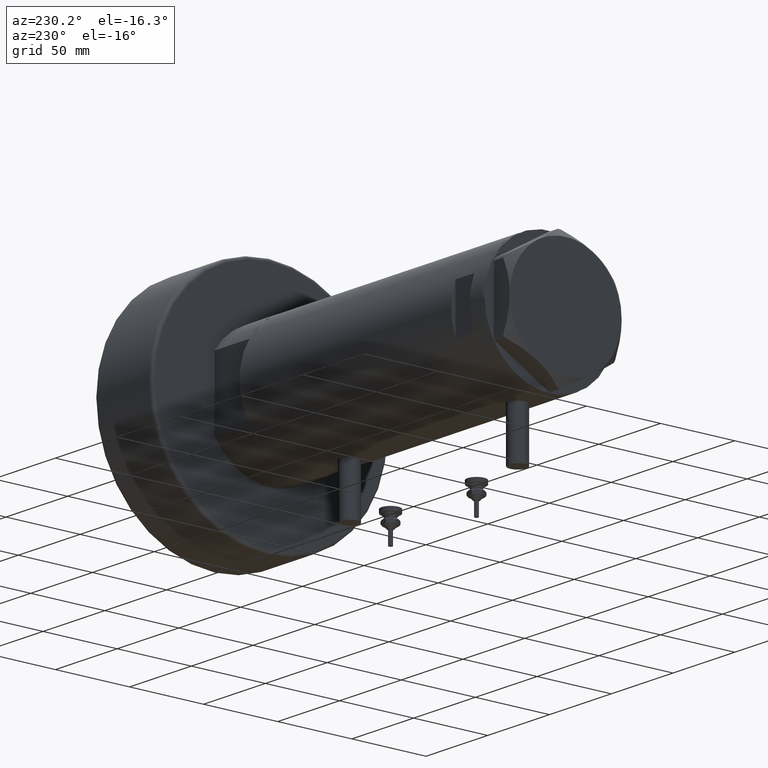
[diagram: clean part render]
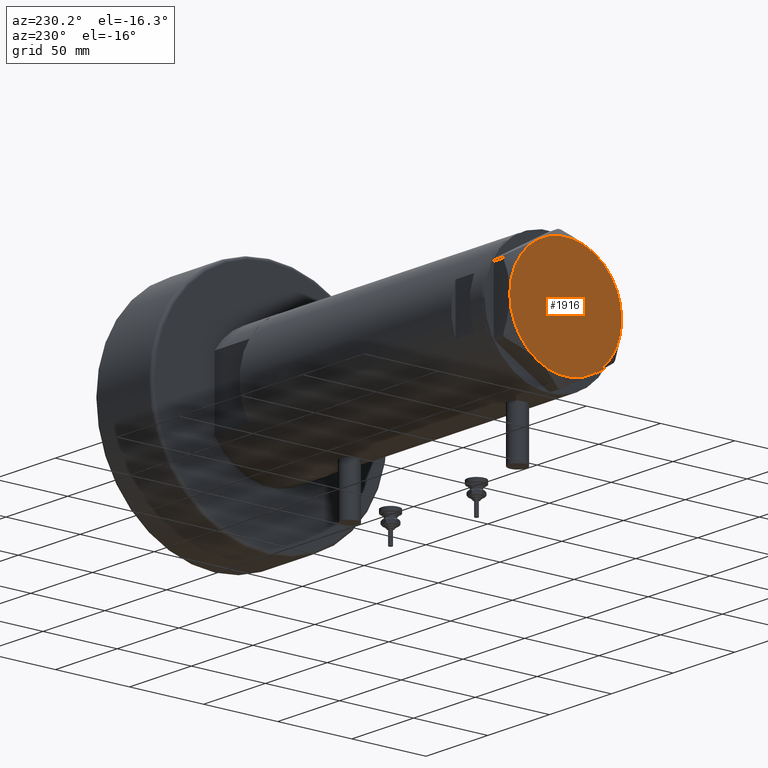
[diagram: same view with one face highlighted and labeled with its STEP entity id]
A machine part, auxiliary view. The second image highlights one B-rep face of the part: STEP entity #1916.
In plain terms, the highlighted planar face has unit normal (-1, -0, 0).
Its self-contained STEP definition (entity closure, byte-faithful):
#42 = CARTESIAN_POINT ( 'NONE',  ( -37.75000000000000000, -1.201851678989727067E-14, 13.00000000000000000 ) ) ;
#234 = EDGE_CURVE ( 'NONE', #5525, #4466, #4462, .T. ) ;
#488 = ORIENTED_EDGE ( 'NONE', *, *, #4035, .T. ) ;
#565 = DIRECTION ( 'NONE',  ( 1.000000000000000000, 0.000000000000000000, 0.000000000000000000 ) ) ;
#703 = CIRCLE ( 'NONE', #2545, 37.75000000000000000 ) ;
#876 = EDGE_CURVE ( 'NONE', #4466, #2917, #4886, .T. ) ;
#878 = ORIENTED_EDGE ( 'NONE', *, *, #3828, .T. ) ;
#1020 = CARTESIAN_POINT ( 'NONE',  ( 0.000000000000000000, 0.000000000000000000, 13.00000000000000000 ) ) ;
#1149 = VERTEX_POINT ( 'NONE', #4525 ) ;
#1198 = DIRECTION ( 'NONE',  ( 0.000000000000000000, 0.000000000000000000, 1.000000000000000000 ) ) ;
#1260 = CARTESIAN_POINT ( 'NONE',  ( 0.000000000000000000, 0.000000000000000000, 13.00000000000000000 ) ) ;
#1288 = AXIS2_PLACEMENT_3D ( 'NONE', #4210, #1328, #4652 ) ;
#1328 = DIRECTION ( 'NONE',  ( 0.000000000000000000, 0.000000000000000000, 1.000000000000000000 ) ) ;
#1522 = CIRCLE ( 'NONE', #4375, 37.75000000000000000 ) ;
#1544 = DIRECTION ( 'NONE',  ( 0.000000000000000000, 0.000000000000000000, 1.000000000000000000 ) ) ;
#1565 = DIRECTION ( 'NONE',  ( 0.000000000000000000, 0.000000000000000000, 1.000000000000000000 ) ) ;
#1595 = CARTESIAN_POINT ( 'NONE',  ( -18.87499999999999645, 32.69245899286256218, 13.00000000000000000 ) ) ;
#1727 = ORIENTED_EDGE ( 'NONE', *, *, #2905, .T. ) ;
#1916 = ADVANCED_FACE ( 'NONE', ( #4597 ), #5996, .T. ) ;
#2180 = DIRECTION ( 'NONE',  ( 1.000000000000000000, 0.000000000000000000, 0.000000000000000000 ) ) ;
#2322 = VERTEX_POINT ( 'NONE', #4395 ) ;
#2496 = CARTESIAN_POINT ( 'NONE',  ( 0.000000000000000000, 0.000000000000000000, 13.00000000000000000 ) ) ;
#2542 = DIRECTION ( 'NONE',  ( 1.000000000000000000, 0.000000000000000000, -0.000000000000000000 ) ) ;
#2545 = AXIS2_PLACEMENT_3D ( 'NONE', #1020, #4913, #4388 ) ;
#2743 = CARTESIAN_POINT ( 'NONE',  ( 0.000000000000000000, 0.000000000000000000, 13.00000000000000000 ) ) ;
#2824 = ORIENTED_EDGE ( 'NONE', *, *, #5469, .T. ) ;
#2866 = CARTESIAN_POINT ( 'NONE',  ( 18.87500000000000000, 32.69245899286255508, 13.00000000000000000 ) ) ;
#2905 = EDGE_CURVE ( 'NONE', #1149, #2322, #5947, .T. ) ;
#2917 = VERTEX_POINT ( 'NONE', #42 ) ;
#3223 = EDGE_LOOP ( 'NONE', ( #1727, #878, #4390, #6319, #488, #2824 ) ) ;
#3790 = CARTESIAN_POINT ( 'NONE',  ( -18.87499999999999645, -32.69245899286255508, 13.00000000000000000 ) ) ;
#3828 = EDGE_CURVE ( 'NONE', #2322, #5525, #1522, .T. ) ;
#3877 = VERTEX_POINT ( 'NONE', #3790 ) ;
#4035 = EDGE_CURVE ( 'NONE', #2917, #3877, #703, .T. ) ;
#4205 = DIRECTION ( 'NONE',  ( 0.000000000000000000, 0.000000000000000000, 1.000000000000000000 ) ) ;
#4210 = CARTESIAN_POINT ( 'NONE',  ( 0.000000000000000000, 0.000000000000000000, 13.00000000000000000 ) ) ;
#4221 = DIRECTION ( 'NONE',  ( 0.000000000000000000, 0.000000000000000000, 1.000000000000000000 ) ) ;
#4375 = AXIS2_PLACEMENT_3D ( 'NONE', #1260, #4205, #2180 ) ;
#4388 = DIRECTION ( 'NONE',  ( 1.000000000000000000, 0.000000000000000000, 0.000000000000000000 ) ) ;
#4390 = ORIENTED_EDGE ( 'NONE', *, *, #234, .T. ) ;
#4395 = CARTESIAN_POINT ( 'NONE',  ( 37.75000000000000711, 1.802777518484591547E-14, 13.00000000000000000 ) ) ;
#4462 = CIRCLE ( 'NONE', #4775, 37.75000000000000000 ) ;
#4466 = VERTEX_POINT ( 'NONE', #1595 ) ;
#4525 = CARTESIAN_POINT ( 'NONE',  ( 18.87499999999998579, -32.69245899286256218, 13.00000000000000000 ) ) ;
#4597 = FACE_OUTER_BOUND ( 'NONE', #3223, .T. ) ;
#4652 = DIRECTION ( 'NONE',  ( 1.000000000000000000, 0.000000000000000000, 0.000000000000000000 ) ) ;
#4704 = AXIS2_PLACEMENT_3D ( 'NONE', #2743, #4221, #6201 ) ;
#4775 = AXIS2_PLACEMENT_3D ( 'NONE', #6002, #1565, #5482 ) ;
#4886 = CIRCLE ( 'NONE', #1288, 37.75000000000000000 ) ;
#4913 = DIRECTION ( 'NONE',  ( 0.000000000000000000, 0.000000000000000000, 1.000000000000000000 ) ) ;
#5469 = EDGE_CURVE ( 'NONE', #3877, #1149, #5749, .T. ) ;
#5482 = DIRECTION ( 'NONE',  ( 1.000000000000000000, 0.000000000000000000, 0.000000000000000000 ) ) ;
#5525 = VERTEX_POINT ( 'NONE', #2866 ) ;
#5600 = CARTESIAN_POINT ( 'NONE',  ( 0.000000000000000000, 0.000000000000000000, 13.00000000000000000 ) ) ;
#5749 = CIRCLE ( 'NONE', #4704, 37.75000000000000000 ) ;
#5947 = CIRCLE ( 'NONE', #6052, 37.75000000000000000 ) ;
#5996 = PLANE ( 'NONE',  #6230 ) ;
#6002 = CARTESIAN_POINT ( 'NONE',  ( 0.000000000000000000, 0.000000000000000000, 13.00000000000000000 ) ) ;
#6052 = AXIS2_PLACEMENT_3D ( 'NONE', #2496, #1544, #565 ) ;
#6201 = DIRECTION ( 'NONE',  ( 1.000000000000000000, 0.000000000000000000, 0.000000000000000000 ) ) ;
#6230 = AXIS2_PLACEMENT_3D ( 'NONE', #5600, #1198, #2542 ) ;
#6319 = ORIENTED_EDGE ( 'NONE', *, *, #876, .T. ) ;